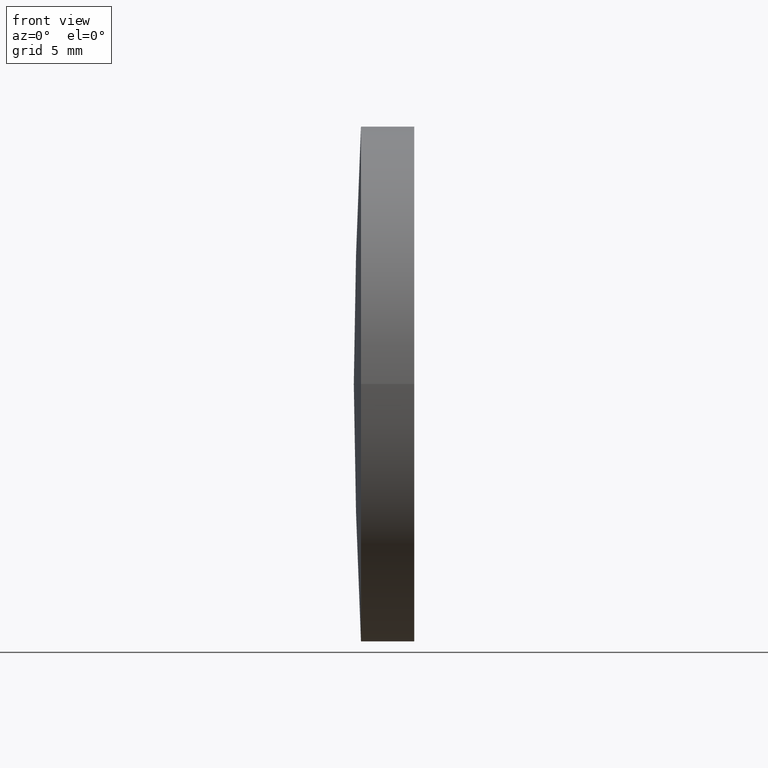
[diagram: clean part render]
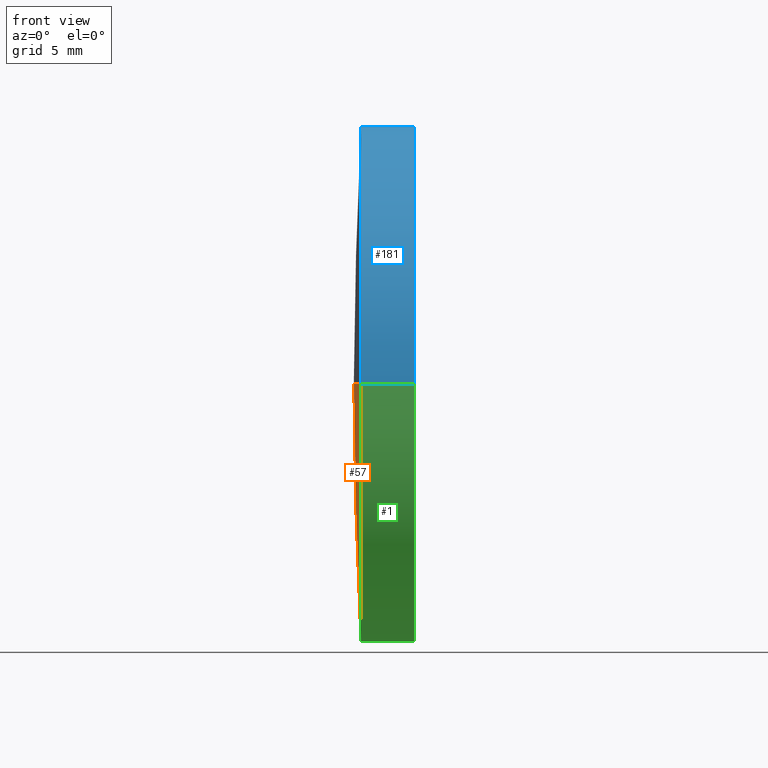
[diagram: same view with three faces highlighted in distinct colors, each labeled with its STEP entity id]
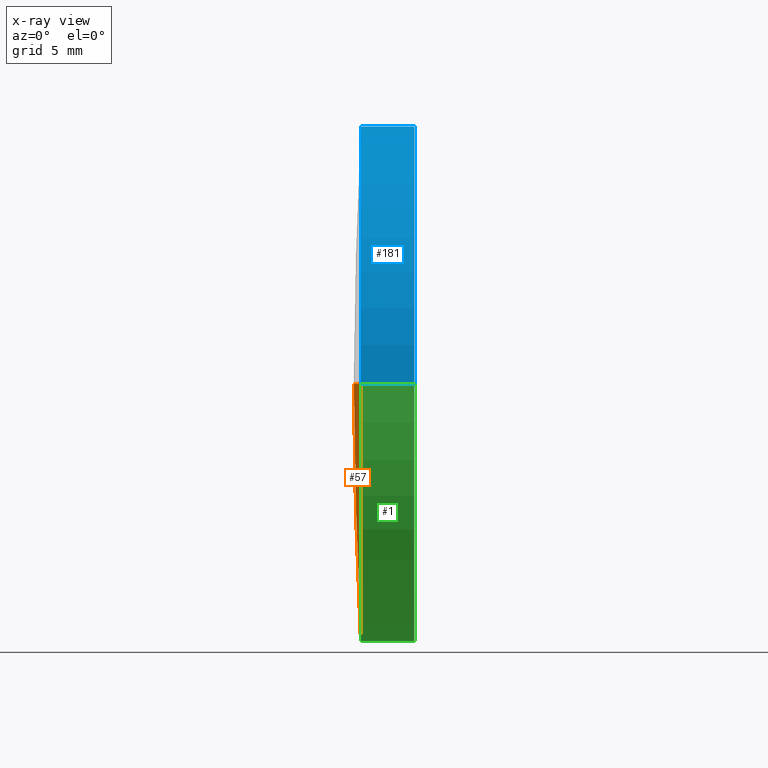
[diagram: x-ray of the same camera — body ghosted, the three highlighted faces saturated]
A machine part, front view with three faces highlighted in distinct colors.
The next image is the same camera in x-ray (body ghosted, the three faces saturated) — at least one of them is partly hidden behind the body in this view.
Their STEP definitions:

[orange] entity #57 — the highlighted spherical surface has radius 225 mm.
#6 = CIRCLE ( 'NONE', #117, 225.0000000000000300 ) ;
#8 = DIRECTION ( 'NONE',  ( -0.0000000000000000000, 0.0000000000000000000, -1.000000000000000000 ) ) ;
#16 = AXIS2_PLACEMENT_3D ( 'NONE', #127, #26, #36 ) ;
#23 = SPHERICAL_SURFACE ( 'NONE', #102, 225.0000000000000300 ) ;
#26 = DIRECTION ( 'NONE',  ( -0.0000000000000000000, 0.0000000000000000000, 1.000000000000000000 ) ) ;
#27 = EDGE_CURVE ( 'NONE', #177, #52, #91, .T. ) ;
#29 = ORIENTED_EDGE ( 'NONE', *, *, #27, .T. ) ;
#30 = EDGE_CURVE ( 'NONE', #52, #32, #6, .T. ) ;
#32 = VERTEX_POINT ( 'NONE', #176 ) ;
#35 = DIRECTION ( 'NONE',  ( 1.110223024625153800E-015, -1.000000000000000000, 0.0000000000000000000 ) ) ;
#36 = DIRECTION ( 'NONE',  ( 1.000000000000000000, 0.0000000000000000000, 0.0000000000000000000 ) ) ;
#51 = EDGE_CURVE ( 'NONE', #177, #32, #111, .T. ) ;
#52 = VERTEX_POINT ( 'NONE', #124 ) ;
#57 = ADVANCED_FACE ( 'NONE', ( #71 ), #23, .T. ) ;
#71 = FACE_OUTER_BOUND ( 'NONE', #145, .T. ) ;
#77 = CARTESIAN_POINT ( 'NONE',  ( 122.9596842541332500, 65.21684047094032600, 0.0000000000000000000 ) ) ;
#91 = CIRCLE ( 'NONE', #105, 12.50000000000003200 ) ;
#92 = DIRECTION ( 'NONE',  ( -1.000000000000000000, -6.937607244762875000E-016, -0.0000000000000000000 ) ) ;
#102 = AXIS2_PLACEMENT_3D ( 'NONE', #186, #8, #175 ) ;
#105 = AXIS2_PLACEMENT_3D ( 'NONE', #77, #92, #35 ) ;
#109 = CARTESIAN_POINT ( 'NONE',  ( 347.6121936992760800, 65.21684047094009900, 0.0000000000000000000 ) ) ;
#111 = CIRCLE ( 'NONE', #16, 224.9999999999999700 ) ;
#117 = AXIS2_PLACEMENT_3D ( 'NONE', #109, #143, #142 ) ;
#119 = ORIENTED_EDGE ( 'NONE', *, *, #51, .F. ) ;
#124 = CARTESIAN_POINT ( 'NONE',  ( 122.9596842541332500, 52.71684047093991400, -1.530808498934197000E-015 ) ) ;
#127 = CARTESIAN_POINT ( 'NONE',  ( 347.6121936992760800, 65.21684047094009900, 0.0000000000000000000 ) ) ;
#128 = CARTESIAN_POINT ( 'NONE',  ( 122.9596842541332500, 77.71684047094036900, 0.0000000000000000000 ) ) ;
#142 = DIRECTION ( 'NONE',  ( 0.0000000000000000000, 1.000000000000000000, 1.224646799147353200E-016 ) ) ;
#143 = DIRECTION ( 'NONE',  ( -8.496118506040342700E-032, 1.224646799147353200E-016, -1.000000000000000000 ) ) ;
#145 = EDGE_LOOP ( 'NONE', ( #29, #147, #119 ) ) ;
#147 = ORIENTED_EDGE ( 'NONE', *, *, #30, .T. ) ;
#175 = DIRECTION ( 'NONE',  ( -7.401486830834376300E-016, 1.000000000000000000, 0.0000000000000000000 ) ) ;
#176 = CARTESIAN_POINT ( 'NONE',  ( 122.6121936992760600, 65.21684047093997100, 0.0000000000000000000 ) ) ;
#177 = VERTEX_POINT ( 'NONE', #128 ) ;
#186 = CARTESIAN_POINT ( 'NONE',  ( 347.6121936992760800, 65.21684047094009900, 0.0000000000000000000 ) ) ;

[blue] entity #181 — the highlighted cylindrical surface (partial cylindrical patch) has radius 12.5 mm, axis along (-1, -0, -0).
#19 = EDGE_LOOP ( 'NONE', ( #45, #162, #41, #122 ) ) ;
#24 = DIRECTION ( 'NONE',  ( -1.000000000000000000, -6.937607244762875000E-016, -0.0000000000000000000 ) ) ;
#25 = CIRCLE ( 'NONE', #110, 12.50000000000003200 ) ;
#41 = ORIENTED_EDGE ( 'NONE', *, *, #65, .F. ) ;
#45 = ORIENTED_EDGE ( 'NONE', *, *, #93, .T. ) ;
#47 = CARTESIAN_POINT ( 'NONE',  ( 125.5380115921884700, 65.21684047094032600, 0.0000000000000000000 ) ) ;
#48 = DIRECTION ( 'NONE',  ( -1.000000000000000000, -6.937607244762875000E-016, -0.0000000000000000000 ) ) ;
#50 = DIRECTION ( 'NONE',  ( 1.110223024625153800E-015, -1.000000000000000000, 0.0000000000000000000 ) ) ;
#52 = VERTEX_POINT ( 'NONE', #124 ) ;
#55 = CARTESIAN_POINT ( 'NONE',  ( 115.9444912979631700, 65.21684047094032600, 0.0000000000000000000 ) ) ;
#65 = EDGE_CURVE ( 'NONE', #52, #177, #25, .T. ) ;
#66 = EDGE_CURVE ( 'NONE', #90, #177, #161, .T. ) ;
#74 = AXIS2_PLACEMENT_3D ( 'NONE', #47, #155, #107 ) ;
#79 = EDGE_CURVE ( 'NONE', #131, #52, #178, .T. ) ;
#84 = DIRECTION ( 'NONE',  ( -1.000000000000000000, -6.937607244762875000E-016, -0.0000000000000000000 ) ) ;
#90 = VERTEX_POINT ( 'NONE', #96 ) ;
#93 = EDGE_CURVE ( 'NONE', #131, #90, #139, .T. ) ;
#95 = CARTESIAN_POINT ( 'NONE',  ( 115.9444912979631800, 52.71684047094031200, 0.0000000000000000000 ) ) ;
#96 = CARTESIAN_POINT ( 'NONE',  ( 125.5380115921885200, 77.71684047094399300, 0.0000000000000000000 ) ) ;
#100 = DIRECTION ( 'NONE',  ( 1.110223024625155000E-015, -1.000000000000000000, 0.0000000000000000000 ) ) ;
#106 = DIRECTION ( 'NONE',  ( -1.000000000000000000, -6.937607244762875000E-016, -0.0000000000000000000 ) ) ;
#107 = DIRECTION ( 'NONE',  ( 0.0000000000000000000, -1.000000000000000000, 0.0000000000000000000 ) ) ;
#110 = AXIS2_PLACEMENT_3D ( 'NONE', #157, #106, #50 ) ;
#122 = ORIENTED_EDGE ( 'NONE', *, *, #79, .F. ) ;
#124 = CARTESIAN_POINT ( 'NONE',  ( 122.9596842541332500, 52.71684047093991400, -1.530808498934197000E-015 ) ) ;
#125 = CARTESIAN_POINT ( 'NONE',  ( 125.5380115921885200, 52.71684047093635400, -1.530808498934639200E-015 ) ) ;
#128 = CARTESIAN_POINT ( 'NONE',  ( 122.9596842541332500, 77.71684047094036900, 0.0000000000000000000 ) ) ;
#131 = VERTEX_POINT ( 'NONE', #125 ) ;
#137 = VECTOR ( 'NONE', #48, 1000.000000000000000 ) ;
#139 = CIRCLE ( 'NONE', #74, 12.49999999999999100 ) ;
#144 = CYLINDRICAL_SURFACE ( 'NONE', #146, 12.50000000000001800 ) ;
#146 = AXIS2_PLACEMENT_3D ( 'NONE', #55, #84, #100 ) ;
#150 = VECTOR ( 'NONE', #24, 1000.000000000000000 ) ;
#154 = CARTESIAN_POINT ( 'NONE',  ( 115.9444912979631500, 77.71684047094035500, 1.530808498934193700E-015 ) ) ;
#155 = DIRECTION ( 'NONE',  ( -1.000000000000000000, -6.937607244762875000E-016, -0.0000000000000000000 ) ) ;
#157 = CARTESIAN_POINT ( 'NONE',  ( 122.9596842541332500, 65.21684047094032600, 0.0000000000000000000 ) ) ;
#161 = LINE ( 'NONE', #154, #150 ) ;
#162 = ORIENTED_EDGE ( 'NONE', *, *, #66, .T. ) ;
#169 = FACE_OUTER_BOUND ( 'NONE', #19, .T. ) ;
#177 = VERTEX_POINT ( 'NONE', #128 ) ;
#178 = LINE ( 'NONE', #95, #137 ) ;
#181 = ADVANCED_FACE ( 'NONE', ( #169 ), #144, .T. ) ;

[green] entity #1 — the highlighted cylindrical surface (partial cylindrical patch) has radius 12.5 mm, axis along (-1, -0, -0).
#1 = ADVANCED_FACE ( 'NONE', ( #4 ), #151, .T. ) ;
#2 = EDGE_CURVE ( 'NONE', #90, #131, #113, .T. ) ;
#4 = FACE_OUTER_BOUND ( 'NONE', #10, .T. ) ;
#10 = EDGE_LOOP ( 'NONE', ( #81, #171, #67, #63 ) ) ;
#11 = AXIS2_PLACEMENT_3D ( 'NONE', #120, #140, #170 ) ;
#24 = DIRECTION ( 'NONE',  ( -1.000000000000000000, -6.937607244762875000E-016, -0.0000000000000000000 ) ) ;
#27 = EDGE_CURVE ( 'NONE', #177, #52, #91, .T. ) ;
#35 = DIRECTION ( 'NONE',  ( 1.110223024625153800E-015, -1.000000000000000000, 0.0000000000000000000 ) ) ;
#48 = DIRECTION ( 'NONE',  ( -1.000000000000000000, -6.937607244762875000E-016, -0.0000000000000000000 ) ) ;
#52 = VERTEX_POINT ( 'NONE', #124 ) ;
#63 = ORIENTED_EDGE ( 'NONE', *, *, #27, .F. ) ;
#66 = EDGE_CURVE ( 'NONE', #90, #177, #161, .T. ) ;
#67 = ORIENTED_EDGE ( 'NONE', *, *, #79, .T. ) ;
#77 = CARTESIAN_POINT ( 'NONE',  ( 122.9596842541332500, 65.21684047094032600, 0.0000000000000000000 ) ) ;
#79 = EDGE_CURVE ( 'NONE', #131, #52, #178, .T. ) ;
#81 = ORIENTED_EDGE ( 'NONE', *, *, #66, .F. ) ;
#90 = VERTEX_POINT ( 'NONE', #96 ) ;
#91 = CIRCLE ( 'NONE', #105, 12.50000000000003200 ) ;
#92 = DIRECTION ( 'NONE',  ( -1.000000000000000000, -6.937607244762875000E-016, -0.0000000000000000000 ) ) ;
#95 = CARTESIAN_POINT ( 'NONE',  ( 115.9444912979631800, 52.71684047094031200, 0.0000000000000000000 ) ) ;
#96 = CARTESIAN_POINT ( 'NONE',  ( 125.5380115921885200, 77.71684047094399300, 0.0000000000000000000 ) ) ;
#104 = DIRECTION ( 'NONE',  ( 1.110223024625155000E-015, -1.000000000000000000, 0.0000000000000000000 ) ) ;
#105 = AXIS2_PLACEMENT_3D ( 'NONE', #77, #92, #35 ) ;
#113 = CIRCLE ( 'NONE', #11, 12.49999999999999100 ) ;
#120 = CARTESIAN_POINT ( 'NONE',  ( 125.5380115921884700, 65.21684047094032600, 0.0000000000000000000 ) ) ;
#124 = CARTESIAN_POINT ( 'NONE',  ( 122.9596842541332500, 52.71684047093991400, -1.530808498934197000E-015 ) ) ;
#125 = CARTESIAN_POINT ( 'NONE',  ( 125.5380115921885200, 52.71684047093635400, -1.530808498934639200E-015 ) ) ;
#128 = CARTESIAN_POINT ( 'NONE',  ( 122.9596842541332500, 77.71684047094036900, 0.0000000000000000000 ) ) ;
#131 = VERTEX_POINT ( 'NONE', #125 ) ;
#137 = VECTOR ( 'NONE', #48, 1000.000000000000000 ) ;
#140 = DIRECTION ( 'NONE',  ( -1.000000000000000000, -6.937607244762875000E-016, -0.0000000000000000000 ) ) ;
#150 = VECTOR ( 'NONE', #24, 1000.000000000000000 ) ;
#151 = CYLINDRICAL_SURFACE ( 'NONE', #166, 12.50000000000001800 ) ;
#154 = CARTESIAN_POINT ( 'NONE',  ( 115.9444912979631500, 77.71684047094035500, 1.530808498934193700E-015 ) ) ;
#161 = LINE ( 'NONE', #154, #150 ) ;
#166 = AXIS2_PLACEMENT_3D ( 'NONE', #182, #183, #104 ) ;
#170 = DIRECTION ( 'NONE',  ( 0.0000000000000000000, -1.000000000000000000, 0.0000000000000000000 ) ) ;
#171 = ORIENTED_EDGE ( 'NONE', *, *, #2, .T. ) ;
#177 = VERTEX_POINT ( 'NONE', #128 ) ;
#178 = LINE ( 'NONE', #95, #137 ) ;
#182 = CARTESIAN_POINT ( 'NONE',  ( 115.9444912979631700, 65.21684047094032600, 0.0000000000000000000 ) ) ;
#183 = DIRECTION ( 'NONE',  ( -1.000000000000000000, -6.937607244762875000E-016, -0.0000000000000000000 ) ) ;